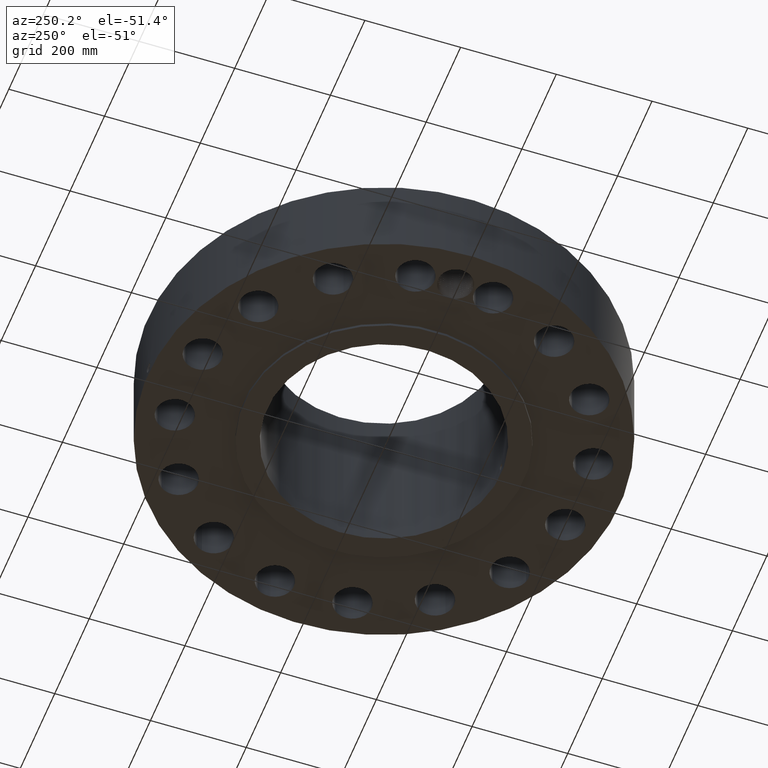
[diagram: clean part render]
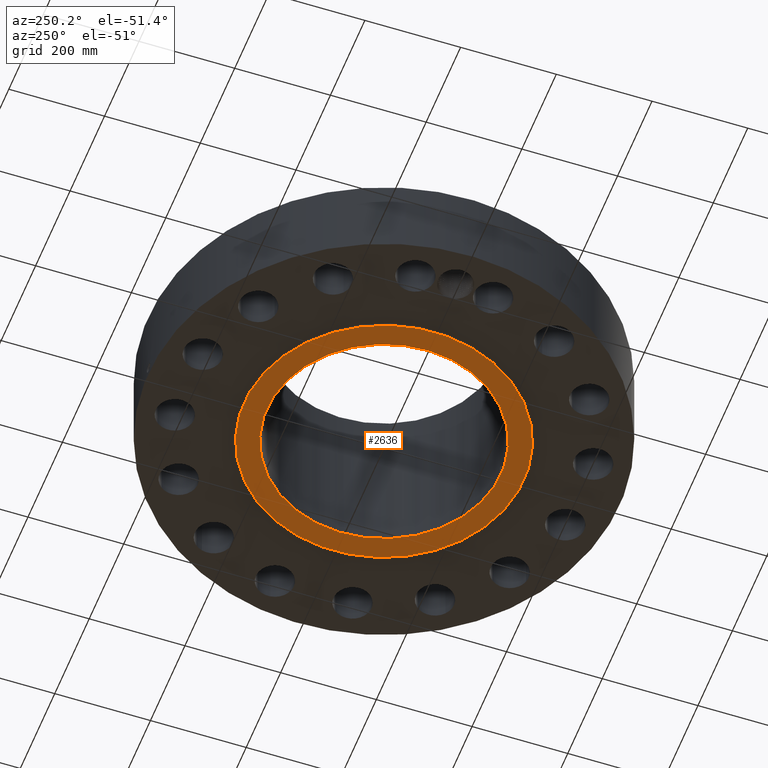
[diagram: same view with one face highlighted and labeled with its STEP entity id]
A machine part, auxiliary view. The second image highlights one B-rep face of the part: STEP entity #2636.
In plain terms, the highlighted planar face has unit normal (0, 0, -1).
Its self-contained STEP definition (entity closure, byte-faithful):
#1428=AXIS2_PLACEMENT_3D('Circle Axis2P3D',#1426,#1427,$) ;
#1454=AXIS2_PLACEMENT_3D('Circle Axis2P3D',#1452,#1453,$) ;
#2612=AXIS2_PLACEMENT_3D('Plane Axis2P3D',#2609,#2610,#2611) ;
#2620=AXIS2_PLACEMENT_3D('Circle Axis2P3D',#2618,#2619,$) ;
#2629=AXIS2_PLACEMENT_3D('Circle Axis2P3D',#2627,#2628,$) ;
#1426=CARTESIAN_POINT('Axis2P3D Location',(0.,0.,1.1189649382E-015)) ;
#1430=CARTESIAN_POINT('Vertex',(5.51339369397,10.0921994618,1.1189649382E-015)) ;
#1432=CARTESIAN_POINT('Vertex',(-5.51339369397,-10.0921994618,1.1189649382E-015)) ;
#1452=CARTESIAN_POINT('Axis2P3D Location',(0.,0.,1.1189649382E-015)) ;
#2609=CARTESIAN_POINT('Axis2P3D Location',(0.,9.62500000004,0.)) ;
#2618=CARTESIAN_POINT('Axis2P3D Location',(0.,0.,0.)) ;
#2622=CARTESIAN_POINT('Vertex',(4.61447080908,8.44673215823,-6.04241066631E-014)) ;
#2624=CARTESIAN_POINT('Vertex',(-4.61447080908,-8.44673215823,-6.04241066631E-014)) ;
#2627=CARTESIAN_POINT('Axis2P3D Location',(0.,0.,0.)) ;
#1427=DIRECTION('Axis2P3D Direction',(0.,0.,-0.0393700787402)) ;
#1453=DIRECTION('Axis2P3D Direction',(0.,0.,-0.0393700787402)) ;
#2610=DIRECTION('Axis2P3D Direction',(0.,0.,-0.0393700787402)) ;
#2611=DIRECTION('Axis2P3D XDirection',(0.0393700787402,0.,0.)) ;
#2619=DIRECTION('Axis2P3D Direction',(0.,0.,-0.0393700787402)) ;
#2628=DIRECTION('Axis2P3D Direction',(0.,0.,-0.0393700787402)) ;
#2615=ORIENTED_EDGE('',*,*,#1456,.T.) ;
#2616=ORIENTED_EDGE('',*,*,#1434,.T.) ;
#2633=ORIENTED_EDGE('',*,*,#2626,.F.) ;
#2634=ORIENTED_EDGE('',*,*,#2631,.F.) ;
#2635=FACE_BOUND('',#2632,.T.) ;
#2636=ADVANCED_FACE('PartBody',(#2617,#2635),#2613,.T.) ;
#1429=CIRCLE('generated circle',#1428,11.5) ;
#1455=CIRCLE('generated circle',#1454,11.5) ;
#2621=CIRCLE('generated circle',#2620,9.62500000004) ;
#2630=CIRCLE('generated circle',#2629,9.62500000004) ;
#1434=EDGE_CURVE('',#1431,#1433,#1429,.T.) ;
#1456=EDGE_CURVE('',#1433,#1431,#1455,.T.) ;
#2626=EDGE_CURVE('',#2623,#2625,#2621,.T.) ;
#2631=EDGE_CURVE('',#2625,#2623,#2630,.T.) ;
#2614=EDGE_LOOP('',(#2615,#2616)) ;
#2632=EDGE_LOOP('',(#2633,#2634)) ;
#2617=FACE_OUTER_BOUND('',#2614,.T.) ;
#2613=PLANE('',#2612) ;
#1431=VERTEX_POINT('',#1430) ;
#1433=VERTEX_POINT('',#1432) ;
#2623=VERTEX_POINT('',#2622) ;
#2625=VERTEX_POINT('',#2624) ;